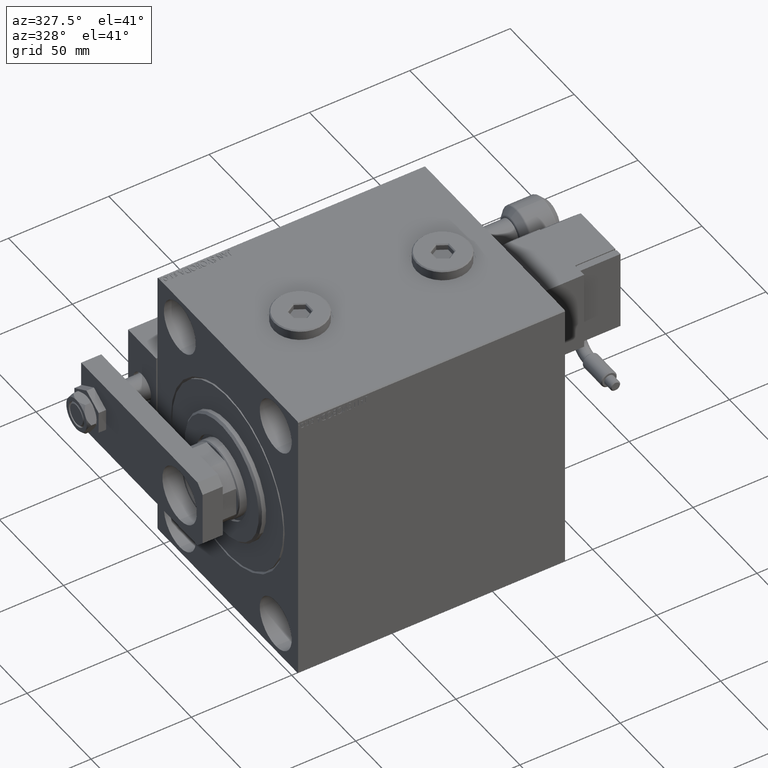
[diagram: clean part render]
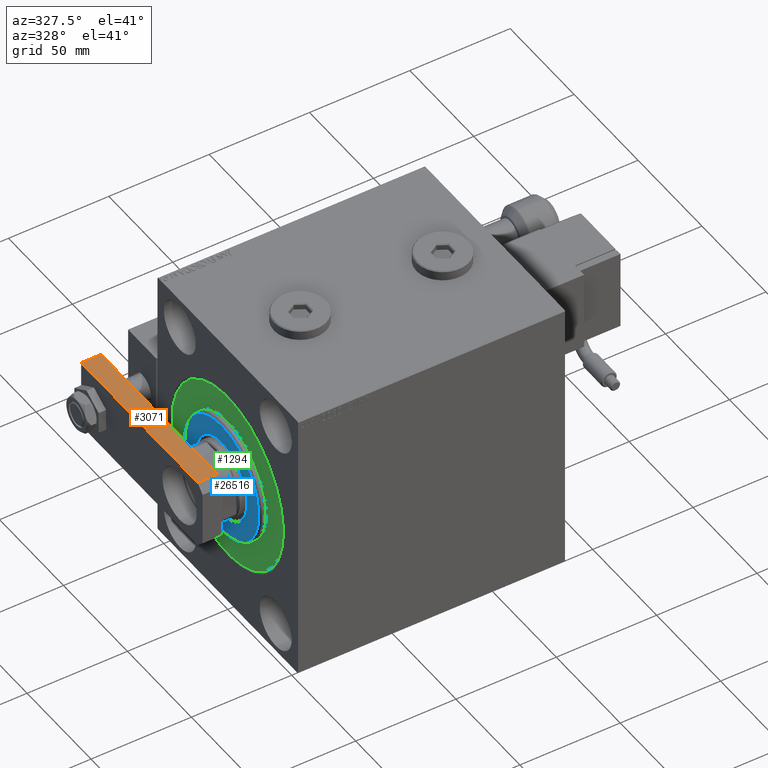
[diagram: same view with three faces highlighted in distinct colors, each labeled with its STEP entity id]
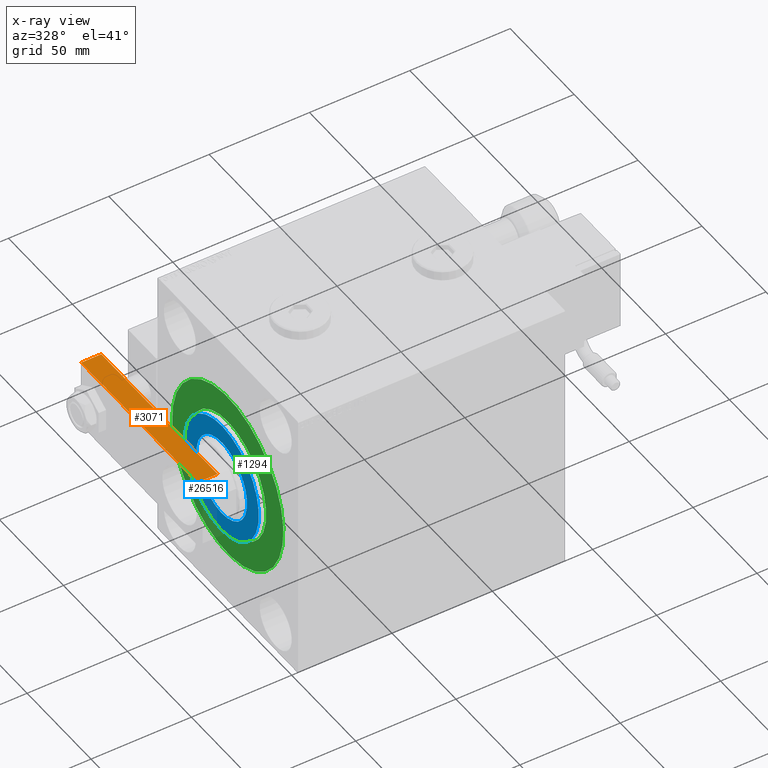
[diagram: x-ray of the same camera — body ghosted, the three highlighted faces saturated]
A machine part, auxiliary view with three faces highlighted in distinct colors.
The next image is the same camera in x-ray (body ghosted, the three faces saturated) — at least one of them is partly hidden behind the body in this view.
Their STEP definitions:

[orange] entity #3071 — the highlighted planar face has unit normal (-0, -0, -1).
#42 = EDGE_CURVE ( 'NONE', #37114, #44091, #44971, .T. ) ;
#165 = EDGE_CURVE ( 'NONE', #44091, #47815, #15616, .T. ) ;
#3071 = ADVANCED_FACE ( 'NONE', ( #49070 ), #48551, .F. ) ;
#3079 = LINE ( 'NONE', #27766, #39640 ) ;
#4363 = EDGE_LOOP ( 'NONE', ( #9633, #20803, #19141, #40560 ) ) ;
#8591 = CARTESIAN_POINT ( 'NONE',  ( 17.50000000000001066, 9.629649721936179265E-32, 10.00000000000000000 ) ) ;
#8598 = VECTOR ( 'NONE', #44189, 1000.000000000000000 ) ;
#8707 = CARTESIAN_POINT ( 'NONE',  ( 17.50000000000001066, 9.629649721936179265E-32, 10.00000000000000000 ) ) ;
#9633 = ORIENTED_EDGE ( 'NONE', *, *, #42, .F. ) ;
#10282 = VECTOR ( 'NONE', #23590, 1000.000000000000000 ) ;
#11795 = VERTEX_POINT ( 'NONE', #17623 ) ;
#12106 = LINE ( 'NONE', #24324, #16413 ) ;
#15616 = LINE ( 'NONE', #20135, #10282 ) ;
#16413 = VECTOR ( 'NONE', #20080, 1000.000000000000000 ) ;
#17623 = CARTESIAN_POINT ( 'NONE',  ( 17.50000000000001066, 4.000000000000002665, 0.000000000000000000 ) ) ;
#19141 = ORIENTED_EDGE ( 'NONE', *, *, #50285, .T. ) ;
#20080 = DIRECTION ( 'NONE',  ( 0.000000000000000000, 0.000000000000000000, -1.000000000000000000 ) ) ;
#20135 = CARTESIAN_POINT ( 'NONE',  ( 17.50000000000000000, 95.00000000000000000, 10.00000000000000000 ) ) ;
#20803 = ORIENTED_EDGE ( 'NONE', *, *, #38842, .T. ) ;
#23590 = DIRECTION ( 'NONE',  ( -0.000000000000000000, -0.000000000000000000, -1.000000000000000000 ) ) ;
#23816 = CARTESIAN_POINT ( 'NONE',  ( 17.50000000000001066, 4.000000000000002665, 10.00000000000000000 ) ) ;
#24324 = CARTESIAN_POINT ( 'NONE',  ( 17.50000000000001066, 4.000000000000002665, 10.00000000000000000 ) ) ;
#24369 = DIRECTION ( 'NONE',  ( 1.095614826932720348E-16, -1.000000000000000000, 0.000000000000000000 ) ) ;
#27766 = CARTESIAN_POINT ( 'NONE',  ( 17.50000000000001066, 9.629649721936179265E-32, 0.000000000000000000 ) ) ;
#37114 = VERTEX_POINT ( 'NONE', #23816 ) ;
#37509 = CARTESIAN_POINT ( 'NONE',  ( 17.50000000000000000, 95.00000000000000000, 10.00000000000000000 ) ) ;
#38334 = AXIS2_PLACEMENT_3D ( 'NONE', #8707, #40053, #24369 ) ;
#38842 = EDGE_CURVE ( 'NONE', #37114, #11795, #12106, .T. ) ;
#39640 = VECTOR ( 'NONE', #51697, 1000.000000000000000 ) ;
#40053 = DIRECTION ( 'NONE',  ( -1.000000000000000000, -1.095614826932720348E-16, 0.000000000000000000 ) ) ;
#40560 = ORIENTED_EDGE ( 'NONE', *, *, #165, .F. ) ;
#44091 = VERTEX_POINT ( 'NONE', #37509 ) ;
#44189 = DIRECTION ( 'NONE',  ( -1.095614826932720348E-16, 1.000000000000000000, 0.000000000000000000 ) ) ;
#44971 = LINE ( 'NONE', #8591, #8598 ) ;
#47815 = VERTEX_POINT ( 'NONE', #48172 ) ;
#48172 = CARTESIAN_POINT ( 'NONE',  ( 17.50000000000000000, 95.00000000000000000, 0.000000000000000000 ) ) ;
#48551 = PLANE ( 'NONE',  #38334 ) ;
#49070 = FACE_OUTER_BOUND ( 'NONE', #4363, .T. ) ;
#50285 = EDGE_CURVE ( 'NONE', #11795, #47815, #3079, .T. ) ;
#51697 = DIRECTION ( 'NONE',  ( -1.095614826932720348E-16, 1.000000000000000000, 0.000000000000000000 ) ) ;

[blue] entity #26516 — the highlighted planar face has unit normal (-1, 0, 0).
#104 = CARTESIAN_POINT ( 'NONE',  ( 3.000000000000000000, 0.000000000000000000, 0.000000000000000000 ) ) ;
#2086 = VERTEX_POINT ( 'NONE', #50438 ) ;
#2351 = AXIS2_PLACEMENT_3D ( 'NONE', #35567, #15352, #38757 ) ;
#5194 = AXIS2_PLACEMENT_3D ( 'NONE', #104, #42942, #23460 ) ;
#7840 = DIRECTION ( 'NONE',  ( 1.000000000000000000, -0.000000000000000000, 0.000000000000000000 ) ) ;
#8830 = VERTEX_POINT ( 'NONE', #49460 ) ;
#10831 = CIRCLE ( 'NONE', #2351, 19.75000000000000000 ) ;
#11094 = CIRCLE ( 'NONE', #5194, 28.99999999999999289 ) ;
#11624 = AXIS2_PLACEMENT_3D ( 'NONE', #41457, #49699, #20998 ) ;
#11810 = PLANE ( 'NONE',  #27057 ) ;
#12808 = CARTESIAN_POINT ( 'NONE',  ( 3.000000000000000000, 2.418677428316022331E-15, -19.75000000000000000 ) ) ;
#12823 = CARTESIAN_POINT ( 'NONE',  ( 3.000000000000000000, 0.000000000000000000, 19.75000000000000000 ) ) ;
#13625 = ORIENTED_EDGE ( 'NONE', *, *, #50250, .T. ) ;
#15352 = DIRECTION ( 'NONE',  ( -1.000000000000000000, 0.000000000000000000, -0.000000000000000000 ) ) ;
#15426 = EDGE_LOOP ( 'NONE', ( #16520, #42811 ) ) ;
#16520 = ORIENTED_EDGE ( 'NONE', *, *, #31980, .T. ) ;
#19303 = VERTEX_POINT ( 'NONE', #12823 ) ;
#19486 = DIRECTION ( 'NONE',  ( 0.000000000000000000, 0.000000000000000000, -1.000000000000000000 ) ) ;
#19509 = DIRECTION ( 'NONE',  ( 0.000000000000000000, 0.000000000000000000, -1.000000000000000000 ) ) ;
#20035 = CARTESIAN_POINT ( 'NONE',  ( 3.000000000000000000, 0.000000000000000000, 0.000000000000000000 ) ) ;
#20998 = DIRECTION ( 'NONE',  ( 0.000000000000000000, 0.000000000000000000, -1.000000000000000000 ) ) ;
#22076 = ORIENTED_EDGE ( 'NONE', *, *, #23164, .T. ) ;
#23164 = EDGE_CURVE ( 'NONE', #47799, #19303, #10831, .T. ) ;
#23460 = DIRECTION ( 'NONE',  ( 0.000000000000000000, 0.000000000000000000, -1.000000000000000000 ) ) ;
#26516 = ADVANCED_FACE ( 'NONE', ( #36759, #28799 ), #11810, .T. ) ;
#27057 = AXIS2_PLACEMENT_3D ( 'NONE', #20035, #7840, #19509 ) ;
#27201 = DIRECTION ( 'NONE',  ( 1.000000000000000000, -0.000000000000000000, 0.000000000000000000 ) ) ;
#27466 = CARTESIAN_POINT ( 'NONE',  ( 3.000000000000000000, 0.000000000000000000, 0.000000000000000000 ) ) ;
#28799 = FACE_BOUND ( 'NONE', #47542, .T. ) ;
#31980 = EDGE_CURVE ( 'NONE', #8830, #2086, #11094, .T. ) ;
#32566 = EDGE_CURVE ( 'NONE', #2086, #8830, #33197, .T. ) ;
#33197 = CIRCLE ( 'NONE', #47619, 28.99999999999999289 ) ;
#35567 = CARTESIAN_POINT ( 'NONE',  ( 3.000000000000000000, 0.000000000000000000, 0.000000000000000000 ) ) ;
#36759 = FACE_OUTER_BOUND ( 'NONE', #15426, .T. ) ;
#38757 = DIRECTION ( 'NONE',  ( 0.000000000000000000, 0.000000000000000000, -1.000000000000000000 ) ) ;
#40469 = CIRCLE ( 'NONE', #11624, 19.75000000000000000 ) ;
#41457 = CARTESIAN_POINT ( 'NONE',  ( 3.000000000000000000, 0.000000000000000000, 0.000000000000000000 ) ) ;
#42811 = ORIENTED_EDGE ( 'NONE', *, *, #32566, .T. ) ;
#42942 = DIRECTION ( 'NONE',  ( 1.000000000000000000, -0.000000000000000000, 0.000000000000000000 ) ) ;
#47542 = EDGE_LOOP ( 'NONE', ( #13625, #22076 ) ) ;
#47619 = AXIS2_PLACEMENT_3D ( 'NONE', #27466, #27201, #19486 ) ;
#47799 = VERTEX_POINT ( 'NONE', #12808 ) ;
#49460 = CARTESIAN_POINT ( 'NONE',  ( 3.000000000000000000, 0.000000000000000000, 28.99999999999999289 ) ) ;
#49699 = DIRECTION ( 'NONE',  ( -1.000000000000000000, 0.000000000000000000, -0.000000000000000000 ) ) ;
#50250 = EDGE_CURVE ( 'NONE', #19303, #47799, #40469, .T. ) ;
#50438 = CARTESIAN_POINT ( 'NONE',  ( 3.000000000000000000, 3.612708057484691604E-15, -28.99999999999999289 ) ) ;

[green] entity #1294 — the highlighted planar face has unit normal (1, 0, -0).
#1294 = ADVANCED_FACE ( 'NONE', ( #16418, #11414 ), #11939, .F. ) ;
#1338 = AXIS2_PLACEMENT_3D ( 'NONE', #11386, #3427, #39543 ) ;
#2470 = AXIS2_PLACEMENT_3D ( 'NONE', #8870, #46045, #25850 ) ;
#2530 = VERTEX_POINT ( 'NONE', #40503 ) ;
#3427 = DIRECTION ( 'NONE',  ( 1.000000000000000000, -0.000000000000000000, 0.000000000000000000 ) ) ;
#3659 = CIRCLE ( 'NONE', #10432, 43.50000000000000000 ) ;
#5310 = EDGE_CURVE ( 'NONE', #2530, #51535, #3659, .T. ) ;
#8870 = CARTESIAN_POINT ( 'NONE',  ( 0.000000000000000000, 0.000000000000000000, 0.000000000000000000 ) ) ;
#10310 = DIRECTION ( 'NONE',  ( -1.000000000000000000, 0.000000000000000000, 0.000000000000000000 ) ) ;
#10432 = AXIS2_PLACEMENT_3D ( 'NONE', #23298, #10310, #43509 ) ;
#11386 = CARTESIAN_POINT ( 'NONE',  ( 0.000000000000000000, 0.000000000000000000, 0.000000000000000000 ) ) ;
#11414 = FACE_OUTER_BOUND ( 'NONE', #15005, .T. ) ;
#11939 = PLANE ( 'NONE',  #41688 ) ;
#13366 = AXIS2_PLACEMENT_3D ( 'NONE', #30427, #46622, #46101 ) ;
#14794 = EDGE_CURVE ( 'NONE', #35703, #16364, #15726, .T. ) ;
#15005 = EDGE_LOOP ( 'NONE', ( #24905, #41693 ) ) ;
#15726 = CIRCLE ( 'NONE', #1338, 30.00000000000000000 ) ;
#16364 = VERTEX_POINT ( 'NONE', #31389 ) ;
#16418 = FACE_BOUND ( 'NONE', #20887, .T. ) ;
#20157 = CIRCLE ( 'NONE', #13366, 43.50000000000000000 ) ;
#20887 = EDGE_LOOP ( 'NONE', ( #28233, #40200 ) ) ;
#23298 = CARTESIAN_POINT ( 'NONE',  ( 0.000000000000000000, 0.000000000000000000, 0.000000000000000000 ) ) ;
#23829 = EDGE_CURVE ( 'NONE', #51535, #2530, #20157, .T. ) ;
#24905 = ORIENTED_EDGE ( 'NONE', *, *, #23829, .F. ) ;
#25346 = CIRCLE ( 'NONE', #2470, 30.00000000000000000 ) ;
#25850 = DIRECTION ( 'NONE',  ( 0.000000000000000000, 0.000000000000000000, -1.000000000000000000 ) ) ;
#26673 = EDGE_CURVE ( 'NONE', #16364, #35703, #25346, .T. ) ;
#27619 = CARTESIAN_POINT ( 'NONE',  ( 0.000000000000000000, 0.000000000000000000, 0.000000000000000000 ) ) ;
#28233 = ORIENTED_EDGE ( 'NONE', *, *, #14794, .F. ) ;
#30281 = CARTESIAN_POINT ( 'NONE',  ( 0.000000000000000000, 0.000000000000000000, 30.00000000000000000 ) ) ;
#30427 = CARTESIAN_POINT ( 'NONE',  ( 0.000000000000000000, 0.000000000000000000, 0.000000000000000000 ) ) ;
#31389 = CARTESIAN_POINT ( 'NONE',  ( 0.000000000000000000, 3.673940397442059178E-15, -30.00000000000000000 ) ) ;
#32652 = DIRECTION ( 'NONE',  ( 0.000000000000000000, 0.000000000000000000, 1.000000000000000000 ) ) ;
#35703 = VERTEX_POINT ( 'NONE', #30281 ) ;
#39543 = DIRECTION ( 'NONE',  ( 0.000000000000000000, 0.000000000000000000, -1.000000000000000000 ) ) ;
#39920 = CARTESIAN_POINT ( 'NONE',  ( 0.000000000000000000, 0.000000000000000000, -43.50000000000000000 ) ) ;
#40200 = ORIENTED_EDGE ( 'NONE', *, *, #26673, .F. ) ;
#40503 = CARTESIAN_POINT ( 'NONE',  ( 0.000000000000000000, 5.327213576290986044E-15, 43.50000000000000000 ) ) ;
#41688 = AXIS2_PLACEMENT_3D ( 'NONE', #27619, #52340, #32652 ) ;
#41693 = ORIENTED_EDGE ( 'NONE', *, *, #5310, .F. ) ;
#43509 = DIRECTION ( 'NONE',  ( 0.000000000000000000, 0.000000000000000000, 1.000000000000000000 ) ) ;
#46045 = DIRECTION ( 'NONE',  ( 1.000000000000000000, -0.000000000000000000, 0.000000000000000000 ) ) ;
#46101 = DIRECTION ( 'NONE',  ( 0.000000000000000000, 0.000000000000000000, 1.000000000000000000 ) ) ;
#46622 = DIRECTION ( 'NONE',  ( -1.000000000000000000, 0.000000000000000000, 0.000000000000000000 ) ) ;
#51535 = VERTEX_POINT ( 'NONE', #39920 ) ;
#52340 = DIRECTION ( 'NONE',  ( -1.000000000000000000, 0.000000000000000000, 0.000000000000000000 ) ) ;